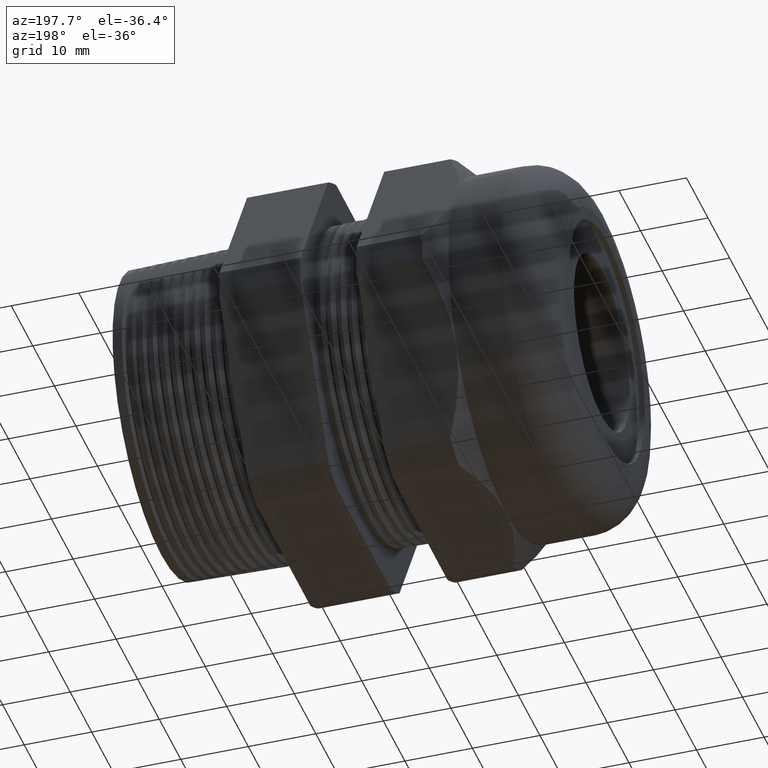
[diagram: clean part render]
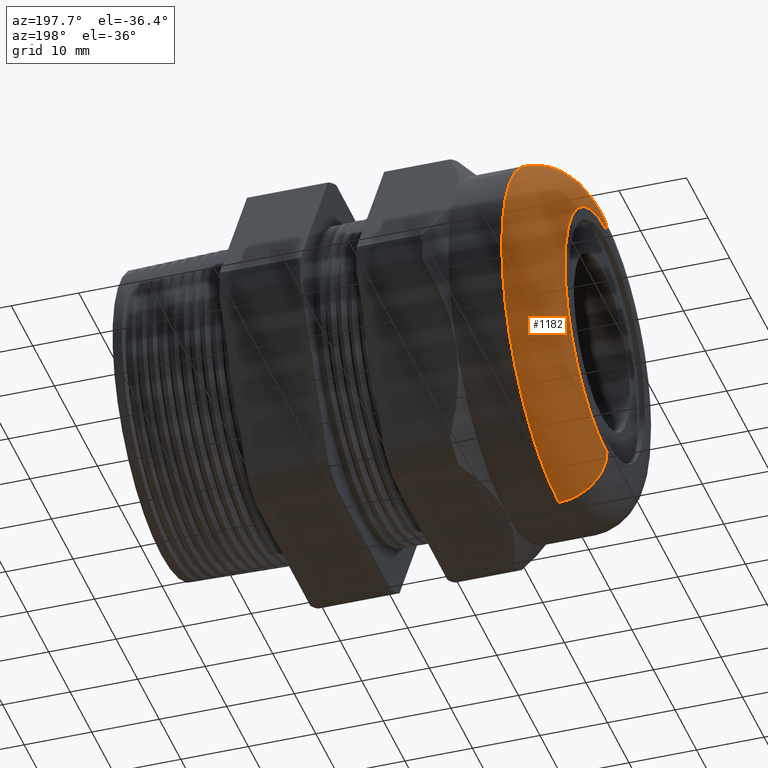
[diagram: same view with one face highlighted and labeled with its STEP entity id]
A machine part, auxiliary view. The second image highlights one B-rep face of the part: STEP entity #1182.
In plain terms, the highlighted toroidal blend (fillet) surface has major radius 19.431 mm and minor (blend) radius 7.112 mm.
Its self-contained STEP definition (entity closure, byte-faithful):
#1157 = EDGE_CURVE ( 'NONE', #1158, #1187, #2681, .T. ) ;
#1158 = VERTEX_POINT ( 'NONE', #2676 ) ;
#1159 = ORIENTED_EDGE ( 'NONE', *, *, #1160, .F. ) ;
#1160 = EDGE_CURVE ( 'NONE', #1184, #1158, #2674, .T. ) ;
#1174 = ORIENTED_EDGE ( 'NONE', *, *, #1157, .F. ) ;
#1177 = ORIENTED_EDGE ( 'NONE', *, *, #1178, .F. ) ;
#1178 = EDGE_CURVE ( 'NONE', #1179, #1184, #2767, .T. ) ;
#1179 = VERTEX_POINT ( 'NONE', #2762 ) ;
#1182 = ADVANCED_FACE ( 'NONE', ( #2761 ), #2754, .T. ) ;
#1184 = VERTEX_POINT ( 'NONE', #2749 ) ;
#1185 = ORIENTED_EDGE ( 'NONE', *, *, #1186, .T. ) ;
#1186 = EDGE_CURVE ( 'NONE', #1179, #1187, #2748, .T. ) ;
#1187 = VERTEX_POINT ( 'NONE', #2743 ) ;
#1229 = EDGE_LOOP ( 'NONE', ( #1177, #1185, #1174, #1159 ) ) ;
#2674 = CIRCLE ( 'NONE', #2734, 0.2800000000000000300 ) ;
#2676 = CARTESIAN_POINT ( 'NONE',  ( -2.200000000000000200, 0.0000000000000000000, 0.7649999999999999000 ) ) ;
#2677 = DIRECTION ( 'NONE',  ( 0.0000000000000000000, 0.0000000000000000000, 1.000000000000000000 ) ) ;
#2678 = DIRECTION ( 'NONE',  ( -1.000000000000000000, 0.0000000000000000000, 0.0000000000000000000 ) ) ;
#2679 = CARTESIAN_POINT ( 'NONE',  ( -2.200000000000000200, 0.0000000000000000000, 0.0000000000000000000 ) ) ;
#2680 = AXIS2_PLACEMENT_3D ( 'NONE', #2679, #2678, #2677 ) ;
#2681 = CIRCLE ( 'NONE', #2680, 0.7649999999999999000 ) ;
#2731 = DIRECTION ( 'NONE',  ( 0.0000000000000000000, 0.0000000000000000000, -1.000000000000000000 ) ) ;
#2732 = DIRECTION ( 'NONE',  ( 0.0000000000000000000, -1.000000000000000000, 0.0000000000000000000 ) ) ;
#2733 = CARTESIAN_POINT ( 'NONE',  ( -1.919999999999999900, 0.0000000000000000000, 0.7649999999999999000 ) ) ;
#2734 = AXIS2_PLACEMENT_3D ( 'NONE', #2733, #2732, #2731 ) ;
#2743 = CARTESIAN_POINT ( 'NONE',  ( -2.200000000000000200, 1.108305353228354700E-016, -0.7649999999999999000 ) ) ;
#2744 = DIRECTION ( 'NONE',  ( 0.0000000000000000000, -1.224646799147353000E-016, 1.000000000000000000 ) ) ;
#2745 = DIRECTION ( 'NONE',  ( 0.0000000000000000000, 1.000000000000000000, 1.224646799147353200E-016 ) ) ;
#2746 = CARTESIAN_POINT ( 'NONE',  ( -1.919999999999999900, 9.368548013477251000E-017, -0.7649999999999999000 ) ) ;
#2747 = AXIS2_PLACEMENT_3D ( 'NONE', #2746, #2745, #2744 ) ;
#2748 = CIRCLE ( 'NONE', #2747, 0.2800000000000000300 ) ;
#2749 = CARTESIAN_POINT ( 'NONE',  ( -1.919999999999999900, 1.279755905108984100E-016, 1.044999999999999900 ) ) ;
#2751 = DIRECTION ( 'NONE',  ( 0.0000000000000000000, 0.0000000000000000000, 1.000000000000000000 ) ) ;
#2752 = DIRECTION ( 'NONE',  ( -1.000000000000000000, 0.0000000000000000000, 0.0000000000000000000 ) ) ;
#2753 = AXIS2_PLACEMENT_3D ( 'NONE', #2755, #2752, #2751 ) ;
#2754 = TOROIDAL_SURFACE ( 'NONE', #2753, 0.7649999999999999000, 0.2800000000000000300 ) ;
#2755 = CARTESIAN_POINT ( 'NONE',  ( -1.919999999999999900, 0.0000000000000000000, 0.0000000000000000000 ) ) ;
#2761 = FACE_OUTER_BOUND ( 'NONE', #1229, .T. ) ;
#2762 = CARTESIAN_POINT ( 'NONE',  ( -1.919999999999999900, 0.0000000000000000000, -1.044999999999999900 ) ) ;
#2763 = DIRECTION ( 'NONE',  ( 0.0000000000000000000, 0.0000000000000000000, 1.000000000000000000 ) ) ;
#2764 = DIRECTION ( 'NONE',  ( 1.000000000000000000, 0.0000000000000000000, 0.0000000000000000000 ) ) ;
#2765 = CARTESIAN_POINT ( 'NONE',  ( -1.919999999999999900, 0.0000000000000000000, 0.0000000000000000000 ) ) ;
#2766 = AXIS2_PLACEMENT_3D ( 'NONE', #2765, #2764, #2763 ) ;
#2767 = CIRCLE ( 'NONE', #2766, 1.044999999999999900 ) ;